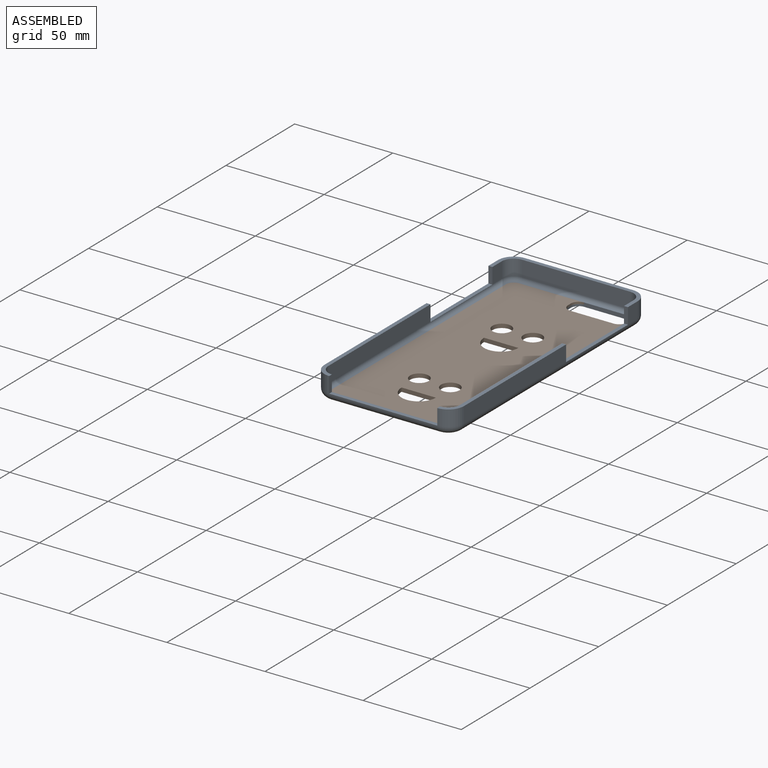
[diagram: assembled view]
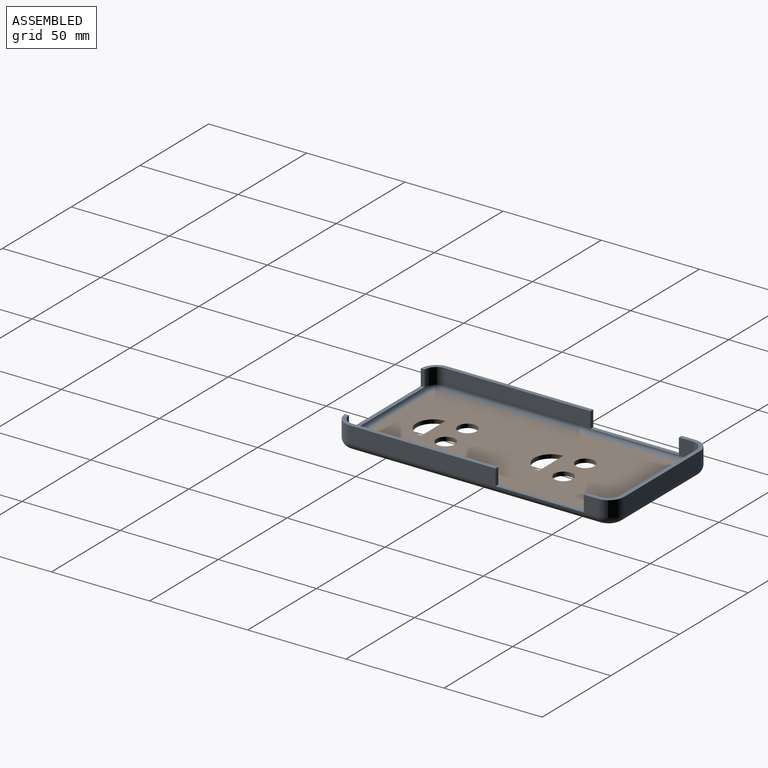
[diagram: assembled view, second angle]
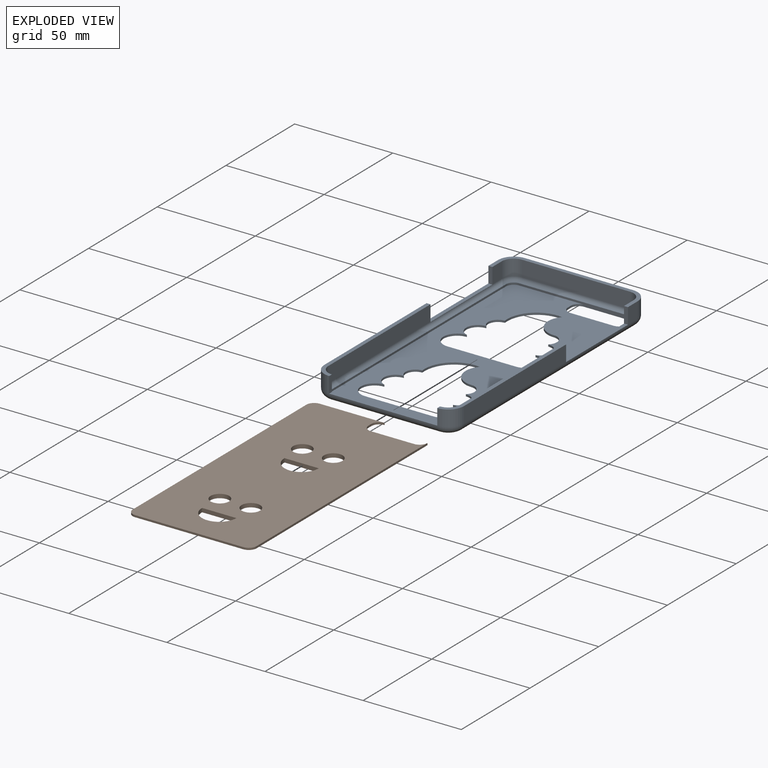
[diagram: exploded view]
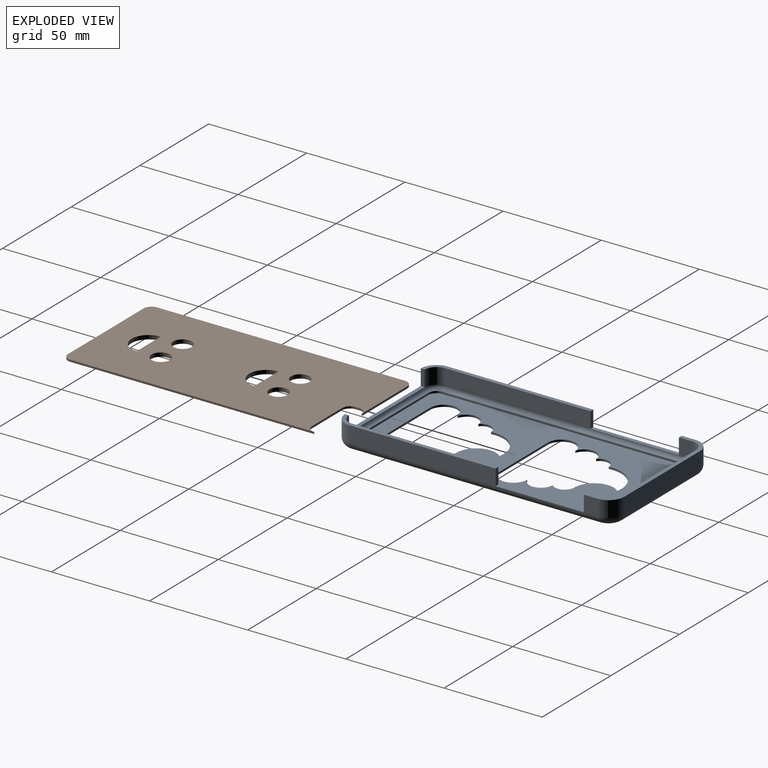
[diagram: exploded view, second angle]
ASSEMBLY  parts=2 mates=3
PART A: 79 faces, bbox 72.4x143.6x12.1 mm
  f0: plane 35x1mm, normal (0,1,0), area 35mm2, adj f1,f8,f33,f73
  f1: cylinder r=7mm len=14mm, axis (0,0,-1), area 22mm2, adj f0,f2,f33,f73
  f2: cylinder r=6mm len=11.75mm, axis (0,0,-1), area 17.1mm2, adj f1,f3,f33,f73
  f3: cylinder r=5mm len=8.77mm, axis (0,0,-1), area 12.1mm2, adj f2,f4,f33,f73
  f4: cylinder r=15mm len=17.61mm, axis (0,0,-1), area 28mm2, adj f3,f5,f33,f73
  f5: cylinder r=10mm len=16.61mm, axis (0,0,-1), area 22.9mm2, adj f4,f6,f33,f73
  f6: cylinder r=5mm len=8.77mm, axis (0,0,-1), area 12.1mm2, adj f5,f7,f33,f73
  f7: cylinder r=6mm len=11.75mm, axis (0,0,-1), area 17.1mm2, adj f6,f8,f33,f73
  f8: cylinder r=7mm len=14mm, axis (0,0,-1), area 22mm2, adj f0,f7,f33,f73
  f9: plane 22x1mm, normal (0,1,0), area 22mm2, adj f11,f13,f33,f73
  f10: plane 2x1mm, normal (1,0,0), area 2mm2, adj f11,f12,f33,f73
  f11: cylinder r=4mm len=4mm, axis (0,0,1), area 6.3mm2, adj f9,f10,f33,f73
  f12: cylinder r=4mm len=4mm, axis (0,0,1), area 6.3mm2, adj f10,f33,f63,f73
  f13: cylinder r=4mm len=4mm, axis (0,0,1), area 6.3mm2, adj f9,f33,f61,f73
  f14: plane 35x1mm, normal (0,1,0), area 35mm2, adj f15,f22,f33,f73
  f15: cylinder r=7mm len=14mm, axis (0,0,-1), area 22mm2, adj f14,f16,f33,f73
  f16: cylinder r=6mm len=11.75mm, axis (0,0,-1), area 17.1mm2, adj f15,f17,f33,f73
  f17: cylinder r=5mm len=8.77mm, axis (0,0,-1), area 12.1mm2, adj f16,f18,f33,f73
  f18: cylinder r=15mm len=17.61mm, axis (0,0,-1), area 28mm2, adj f17,f19,f33,f73
  f19: cylinder r=10mm len=16.61mm, axis (0,0,-1), area 22.9mm2, adj f18,f20,f33,f73
  f20: cylinder r=5mm len=8.77mm, axis (0,0,-1), area 12.1mm2, adj f19,f21,f33,f73
  f21: cylinder r=6mm len=11.75mm, axis (0,0,-1), area 17.1mm2, adj f20,f22,f33,f73
  f22: cylinder r=7mm len=14mm, axis (0,0,-1), area 22mm2, adj f14,f21,f33,f73
  f23: plane 74.3x8.1mm, normal (1,0,0), area 601.8mm2, adj f29,f34,f43,f68
  f24: plane 71.1x15mm, normal (0,0,1), area 182.2mm2, adj f26,f27,f28,f30,f31,f35,f36,f47
  f25: plane 82.3x8mm, normal (0,0,1), area 170.6mm2, adj f32,f37,f48,f52,f64,f71
  f26: plane 8.1x7mm, normal (-1,0,0), area 56.7mm2, adj f24,f36,f40,f70
  f27: plane 8.1x7mm, normal (-1,0,0), area 56.7mm2, adj f24,f50,f58,f69
  f28: plane 8.1x7mm, normal (1,0,0), area 56.7mm2, adj f24,f51,f55,f70
  f29: plane 82.3x8mm, normal (0,0,1), area 170.6mm2, adj f23,f34,f46,f49,f66,f68
  f30: plane 8.1x7mm, normal (1,0,0), area 56.7mm2, adj f24,f35,f43,f69
  f31: plane 55.1x8.1mm, normal (0,1,0), area 446.3mm2, adj f24,f35,f36,f39
  f32: plane 74.3x8.1mm, normal (-1,0,0), area 601.8mm2, adj f25,f37,f40,f71
  f33: plane 134.3x63.1mm, normal (0,0,-1), area 4868.5mm2, adj f0,f1,f2,f3,f4,f5,f6,f7
  f34: cylinder r=8mm len=8.1mm, axis (0,0,1), area 101.8mm2, adj f23,f29,f45,f66
  f35: cylinder r=8mm len=8.1mm, axis (0,0,-1), area 101.8mm2, adj f24,f30,f31,f41
  f36: cylinder r=8mm len=8.1mm, axis (0,0,1), area 101.8mm2, adj f24,f26,f31,f38
  f37: cylinder r=8mm len=8.1mm, axis (0,0,-1), area 101.8mm2, adj f25,f32,f42,f64
  f38: torus R=4mm, axis (0,0,1), area 64.6mm2, adj f33,f36,f39,f40
  f39: cylinder r=4mm len=55.1mm, axis (-1,0,0), area 346.2mm2, adj f31,f33,f38,f41,f63
  f40: cylinder r=4mm len=126.3mm, axis (0,-1,0), area 793.6mm2, adj f26,f32,f33,f38,f42,f72
  f41: torus R=4mm, axis (0,0,1), area 64.6mm2, adj f35,f39,f43,f62
  f42: torus R=4mm, axis (0,0,1), area 64.6mm2, adj f33,f37,f40,f44
  f43: cylinder r=4mm len=126.3mm, axis (0,1,0), area 793.6mm2, adj f23,f30,f33,f41,f45,f61,f67
  f44: cylinder r=4mm len=55.1mm, axis (1,0,0), area 346.2mm2, adj f33,f42,f45,f65
  f45: torus R=4mm, axis (0,0,1), area 64.6mm2, adj f33,f34,f43,f44
  f46: plane 74.3x8.1mm, normal (-1,0,0), area 601.8mm2, adj f29,f49,f58,f68
  f47: plane 55.1x8.1mm, normal (0,-1,0), area 446.3mm2, adj f24,f50,f51,f54
  f48: plane 74.3x8.1mm, normal (1,0,0), area 601.8mm2, adj f25,f52,f55,f71
  f49: cylinder r=6mm len=8.1mm, axis (0,0,1), area 76.3mm2, adj f29,f46,f60,f66
  f50: cylinder r=6mm len=8.1mm, axis (0,0,-1), area 76.3mm2, adj f24,f27,f47,f56
  f51: cylinder r=6mm len=8.1mm, axis (0,0,1), area 76.3mm2, adj f24,f28,f47,f53
  f52: cylinder r=6mm len=8.1mm, axis (0,0,-1), area 76.3mm2, adj f25,f48,f57,f64
  f53: torus R=4mm, axis (0,0,1), area 26mm2, adj f51,f54,f55,f74
  f54: cylinder r=2mm len=55.1mm, axis (-1,0,0), area 173.1mm2, adj f47,f53,f56,f63
  f55: cylinder r=2mm len=126.3mm, axis (0,-1,0), area 396.8mm2, adj f28,f48,f53,f57,f72,f75
  f56: torus R=4mm, axis (0,0,1), area 26mm2, adj f50,f54,f58,f62
  f57: torus R=4mm, axis (0,0,1), area 26mm2, adj f52,f55,f59,f76
  f58: cylinder r=2mm len=126.3mm, axis (0,1,0), area 396.8mm2, adj f27,f46,f56,f60,f61,f67
  f59: cylinder r=2mm len=55.1mm, axis (1,0,0), area 173.1mm2, adj f57,f60,f65,f77
  f60: torus R=4mm, axis (0,0,1), area 26mm2, adj f49,f58,f59,f78
  f61: plane 126.3x2mm, normal (-1,0,0), area 128.3mm2, adj f13,f43,f58,f62,f73,f78
  f62: cylinder r=4mm len=4mm, axis (0,0,1), area 12.6mm2, adj f41,f56,f61,f63
  f63: plane 55.1x2mm, normal (0,-1,0), area 77.1mm2, adj f12,f39,f54,f62,f73,f74
  f64: plane 8.1x2mm, normal (1,0,0), area 16.2mm2, adj f25,f37,f52,f65
  f65: plane 55.1x2mm, normal (0,0,1), area 110.2mm2, adj f44,f59,f64,f66
  f66: plane 8.1x2mm, normal (-1,0,0), area 16.2mm2, adj f29,f34,f49,f65
  f67: plane 45x2mm, normal (0,0,1), area 90mm2, adj f43,f58,f68,f69
  f68: plane 8.1x2mm, normal (0,1,0), area 16.2mm2, adj f23,f29,f46,f67
  f69: plane 8.1x2mm, normal (0,-1,0), area 16.2mm2, adj f24,f27,f30,f67
  f70: plane 8.1x2mm, normal (0,-1,0), area 16.2mm2, adj f24,f26,f28,f72
  f71: plane 8.1x2mm, normal (0,1,0), area 16.2mm2, adj f25,f32,f48,f72
  f72: plane 45x2mm, normal (0,0,1), area 90mm2, adj f40,f55,f70,f71
  f73: plane 134.3x63.1mm, normal (0,0,1), area 4868.5mm2, adj f0,f1,f2,f3,f4,f5,f6,f7
  f74: cylinder r=4mm len=4mm, axis (0,0,1), area 6.3mm2, adj f53,f63,f73,f75
  f75: plane 126.3x1mm, normal (1,0,0), area 126.3mm2, adj f55,f73,f74,f76
  f76: cylinder r=4mm len=4mm, axis (0,0,1), area 6.3mm2, adj f57,f73,f75,f77
  f77: plane 55.1x1mm, normal (0,1,0), area 55.1mm2, adj f59,f73,f76,f78
  f78: cylinder r=4mm len=4mm, axis (0,0,1), area 6.3mm2, adj f60,f61,f73,f77
PART B: 42 faces, bbox 63.1x134.3x2 mm
  f0: cylinder r=4.75mm len=9.5mm, axis (0,0,1), area 59.7mm2, adj f13,f27
  f1: cylinder r=4.75mm len=9.5mm, axis (0,0,1), area 59.7mm2, adj f13,f27
  f2: plane 17.5x2mm, normal (0,-1,0), area 35mm2, adj f3,f13,f27
  f3: cylinder r=8.75mm len=17.5mm, axis (0,0,1), area 55mm2, adj f2,f13,f27
  f4: plane 35x1mm, normal (0,-1,0), area 35mm2, adj f5,f12,f13,f14
  f5: cylinder r=7mm len=14mm, axis (0,0,1), area 22mm2, adj f4,f6,f13,f14
  f6: cylinder r=6mm len=11.75mm, axis (0,0,1), area 17.1mm2, adj f5,f7,f13,f14
  f7: cylinder r=5mm len=8.77mm, axis (0,0,1), area 12.1mm2, adj f6,f8,f13,f14
  f8: cylinder r=15mm len=17.61mm, axis (0,0,1), area 28mm2, adj f7,f9,f13,f14
  f9: cylinder r=10mm len=16.61mm, axis (0,0,1), area 22.9mm2, adj f8,f10,f13,f14
  f10: cylinder r=5mm len=8.77mm, axis (0,0,1), area 12.1mm2, adj f9,f11,f13,f14
  f11: cylinder r=6mm len=11.75mm, axis (0,0,1), area 17.1mm2, adj f10,f12,f13,f14
  f12: cylinder r=7mm len=14mm, axis (0,0,1), area 22mm2, adj f4,f11,f13,f14
  f13: plane 51.36x49mm, normal (0,0,-1), area 1390.9mm2, adj f0,f1,f2,f3,f4,f5,f6,f7
  f14: plane 134.3x63.1mm, normal (0,0,-1), area 4868.5mm2, adj f4,f5,f6,f7,f8,f9,f10,f11
  f15: cylinder r=4mm len=4mm, axis (0,0,-1), area 6.3mm2, adj f14,f16,f26,f27
  f16: plane 126.3x1mm, normal (-1,0,0), area 126.3mm2, adj f14,f15,f17,f27
  f17: cylinder r=4mm len=4mm, axis (0,0,-1), area 6.3mm2, adj f14,f16,f18,f27
  f18: plane 55.1x1mm, normal (0,-1,0), area 55.1mm2, adj f14,f17,f19,f27
  f19: cylinder r=4mm len=4mm, axis (0,0,-1), area 6.3mm2, adj f14,f18,f20,f27
  f20: plane 124.3x1mm, normal (1,0,0), area 124.3mm2, adj f14,f19,f21,f27
  f21: cylinder r=4mm len=4mm, axis (0,0,-1), area 6.3mm2, adj f14,f20,f22,f27
  f22: plane 22x1mm, normal (0,1,0), area 22mm2, adj f14,f21,f23,f27
  f23: cylinder r=4mm len=4mm, axis (0,0,-1), area 6.3mm2, adj f14,f22,f24,f27
  f24: plane 2x1mm, normal (1,0,0), area 2mm2, adj f14,f23,f25,f27
  f25: cylinder r=4mm len=4mm, axis (0,0,-1), area 6.3mm2, adj f14,f24,f26,f27
  f26: plane 33.1x1mm, normal (0,1,0), area 33.1mm2, adj f14,f15,f25,f27
  f27: plane 134.3x63.1mm, normal (0,0,1), area 7650.3mm2, adj f0,f1,f2,f3,f15,f16,f17,f18
  f28: plane 35x1mm, normal (0,-1,0), area 35mm2, adj f14,f29,f40,f41
  f29: cylinder r=7mm len=14mm, axis (0,0,1), area 22mm2, adj f14,f28,f30,f41
  f30: cylinder r=6mm len=11.75mm, axis (0,0,1), area 17.1mm2, adj f14,f29,f31,f41
  f31: cylinder r=5mm len=8.77mm, axis (0,0,1), area 12.1mm2, adj f14,f30,f32,f41
  f32: cylinder r=15mm len=17.61mm, axis (0,0,1), area 28mm2, adj f14,f31,f33,f41
  f33: cylinder r=10mm len=16.61mm, axis (0,0,1), area 22.9mm2, adj f14,f32,f34,f41
  f34: cylinder r=5mm len=8.77mm, axis (0,0,1), area 12.1mm2, adj f14,f33,f35,f41
  f35: cylinder r=6mm len=11.75mm, axis (0,0,1), area 17.1mm2, adj f14,f34,f40,f41
  f36: plane 17.5x2mm, normal (0,-1,0), area 35mm2, adj f27,f37,f41
  f37: cylinder r=8.75mm len=17.5mm, axis (0,0,1), area 55mm2, adj f27,f36,f41
  f38: cylinder r=4.75mm len=9.5mm, axis (0,0,1), area 59.7mm2, adj f27,f41
  f39: cylinder r=4.75mm len=9.5mm, axis (0,0,1), area 59.7mm2, adj f27,f41
  f40: cylinder r=7mm len=14mm, axis (0,0,1), area 22mm2, adj f14,f28,f35,f41
  f41: plane 51.36x49mm, normal (0,0,-1), area 1390.9mm2, adj f28,f29,f30,f31,f32,f33,f34,f35
PLACE A at identity fixed
PLACE B t=(0,0,2)mm
MATE planar A.f63 <-> B.f26  axis (0,-1,0) through (4.72,67.15,2.21)mm
MATE planar B.f20 <-> A.f61  axis (1,0,0) through (31.55,-1,2.5)mm
MATE planar A.f73 <-> B.f9  axis (0,0,1) through (-11,67.15,2)mm
